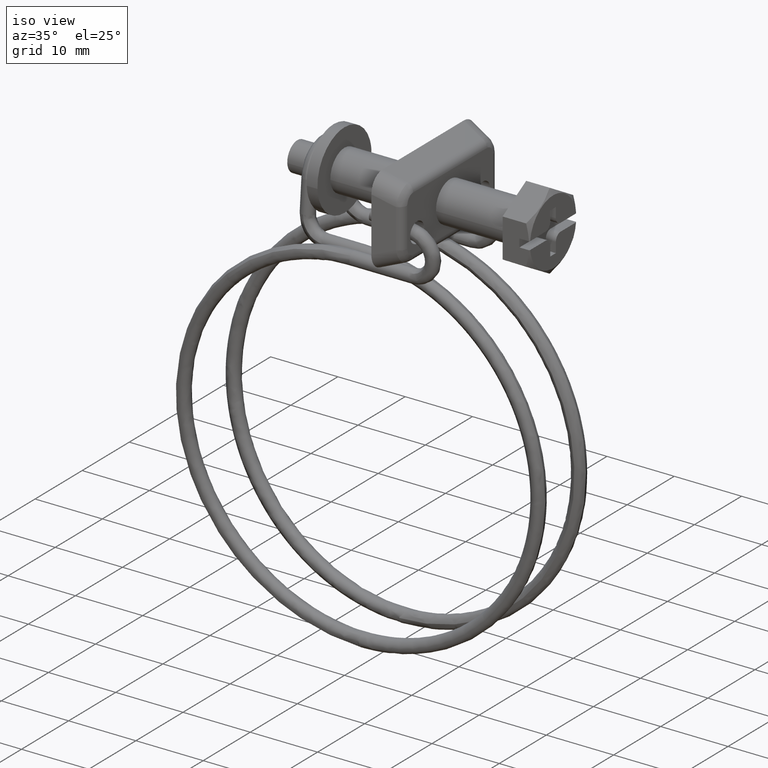
[diagram: clean part render]
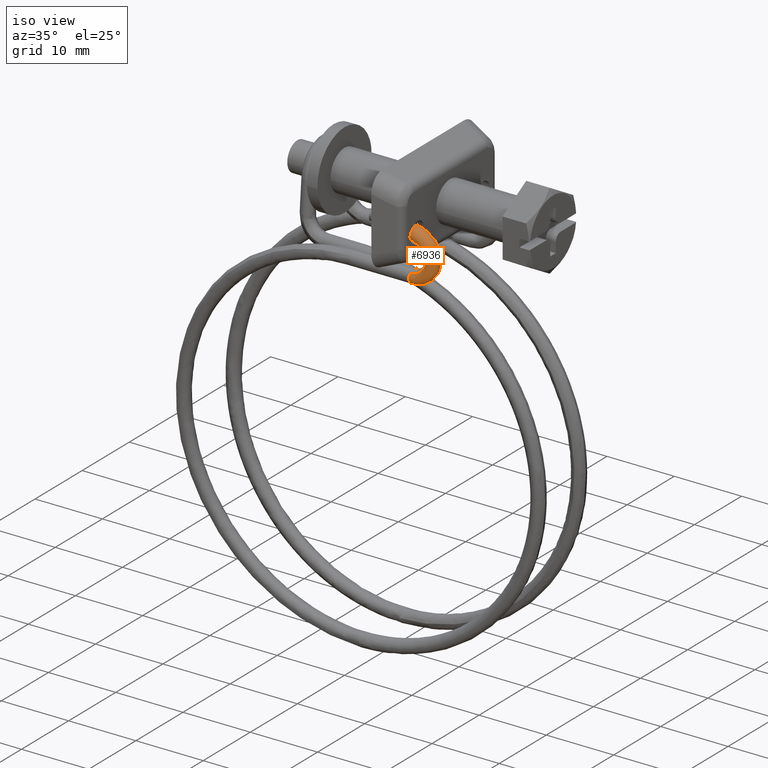
[diagram: same view with one face highlighted and labeled with its STEP entity id]
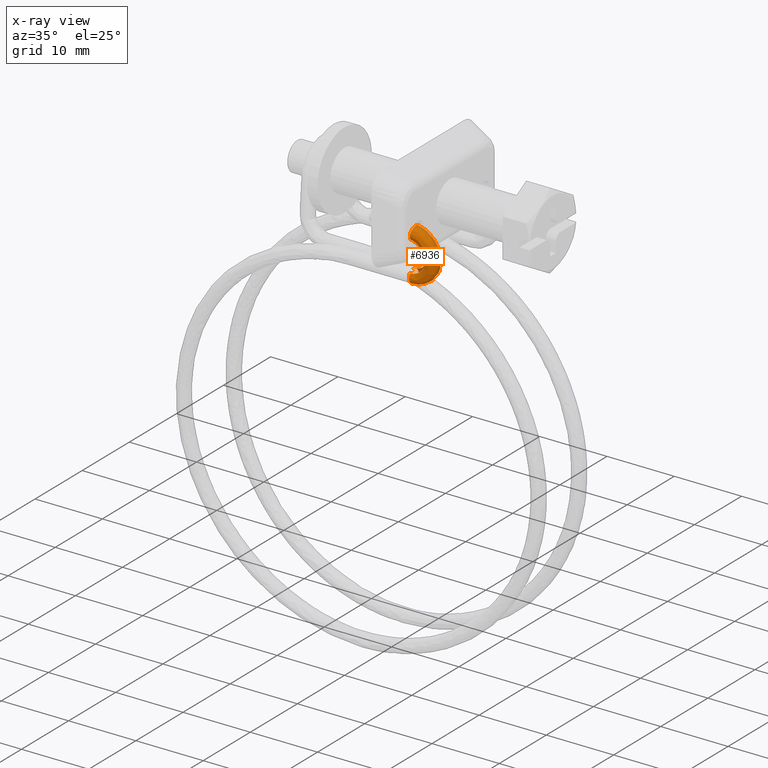
[diagram: x-ray of the same camera — body ghosted, the highlighted face saturated]
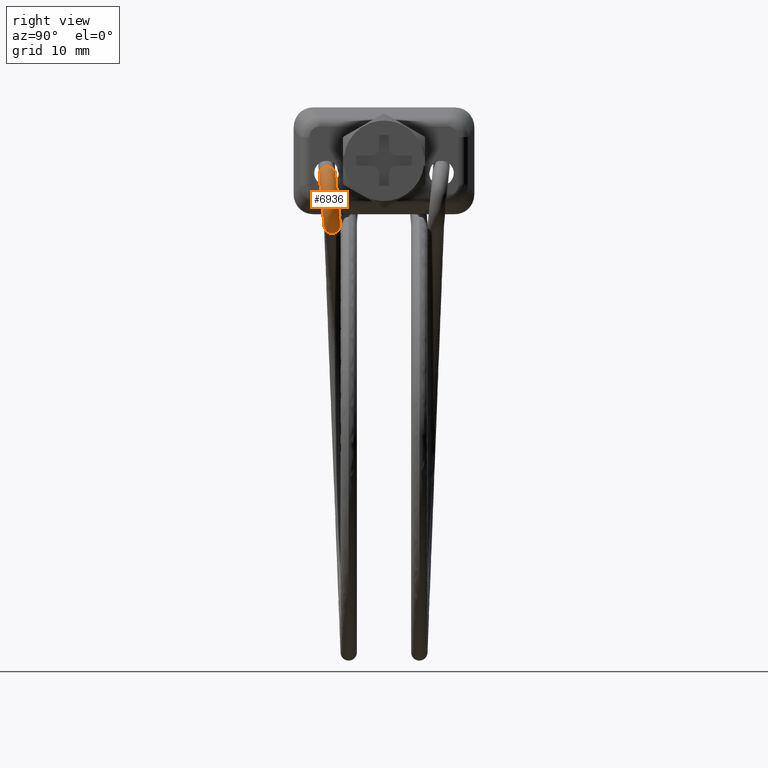
[diagram: same view with one face highlighted and labeled with its STEP entity id]
A machine part, iso view. The second image highlights one B-rep face of the part: STEP entity #6936.
The next image is the same camera in x-ray: the body ghosted, the highlighted face saturated — about 0% of this face is hidden behind the body in this view.
A second angle (right view) of the same face is appended — the face is thin or edge-on in the first view.
In plain terms, the highlighted face is a freeform B-spline surface patch.
Its self-contained STEP definition (entity closure, byte-faithful):
#4406=CARTESIAN_POINT('',(-11.933975147916540,-6.439904455316881,-2.573798456234132));
#4407=VERTEX_POINT('',#4406);
#4408=CARTESIAN_POINT('',(-11.946230552127689,-6.782140481819665,-2.675659128426863));
#4409=VERTEX_POINT('',#4408);
#4410=CARTESIAN_POINT('',(-11.933975147916540,-6.439904455316881,-2.573798456234132));
#4411=CARTESIAN_POINT('',(-11.941640489354709,-6.546727227960084,-2.627370374544086));
#4412=CARTESIAN_POINT('',(-11.945901383268961,-6.663031263229017,-2.662531109449830));
#4413=CARTESIAN_POINT('',(-11.946230552127689,-6.782140481819665,-2.675659128426863));
#4414=B_SPLINE_CURVE_WITH_KNOTS('',3,(#4410,#4411,#4412,#4413),.UNSPECIFIED.,.F.,.U.,(4,4),(0.942811783970662,1.0),.UNSPECIFIED.);
#4415=EDGE_CURVE('',#4407,#4409,#4414,.T.);
#4417=CARTESIAN_POINT('',(-11.893382545666411,-7.541170663317100,-2.447705715559456));
#4418=VERTEX_POINT('',#4417);
#4428=CARTESIAN_POINT('',(-11.597483001890110,-7.001318808772144,-0.718534705402715));
#4429=VERTEX_POINT('',#4428);
#4430=CARTESIAN_POINT('',(-11.893382545666411,-7.541170663317100,-2.447705715559456));
#4431=CARTESIAN_POINT('',(-11.861917005016350,-7.731936481633480,-2.287291670851238));
#4432=CARTESIAN_POINT('',(-11.818645573596131,-7.858028308515890,-2.053808439518039));
#4433=CARTESIAN_POINT('',(-11.729169737089240,-7.914261432260820,-1.551682059622800));
#4434=CARTESIAN_POINT('',(-11.683480470908020,-7.835665771442490,-1.285134372831780));
#4435=CARTESIAN_POINT('',(-11.617822923817460,-7.508280002791950,-0.881818959286532));
#4436=CARTESIAN_POINT('',(-11.598258951099600,-7.261505881756420,-0.747534781380378));
#4437=CARTESIAN_POINT('',(-11.597483001890110,-7.001318808772144,-0.718534705402715));
#4438=B_SPLINE_CURVE_WITH_KNOTS('',3,(#4430,#4431,#4432,#4433,#4434,#4435,#4436,#4437),.UNSPECIFIED.,.F.,.U.,(4,2,2,4),(0.130000056786331,0.250000000000000,0.375000000000000,0.500000000000000),.UNSPECIFIED.);
#4439=EDGE_CURVE('',#4418,#4429,#4438,.T.);
#4441=CARTESIAN_POINT('',(-11.758253521420540,-5.906470699628262,-1.526797445024362));
#4442=VERTEX_POINT('',#4441);
#4443=CARTESIAN_POINT('',(-11.597483001890110,-7.001318808772144,-0.718534705402715));
#4444=CARTESIAN_POINT('',(-11.596706976783020,-6.741126401253939,-0.689533694633394));
#4445=CARTESIAN_POINT('',(-11.614728502588489,-6.470723385588073,-0.766173584750687));
#4446=CARTESIAN_POINT('',(-11.675722251507221,-6.078068041957135,-1.074962816984510));
#4447=CARTESIAN_POINT('',(-11.716311726930069,-5.948065224936456,-1.292866146507063));
#4448=CARTESIAN_POINT('',(-11.758253521420540,-5.906470699628262,-1.526797445024362));
#4449=B_SPLINE_CURVE_WITH_KNOTS('',3,(#4443,#4444,#4445,#4446,#4447,#4448),.UNSPECIFIED.,.F.,.U.,(4,2,4),(0.500000000000000,0.625000000000000,0.740274298676123),.UNSPECIFIED.);
#4450=EDGE_CURVE('',#4429,#4442,#4449,.T.);
#4532=CARTESIAN_POINT('',(-11.758253521420540,-5.906470699628262,-1.526797445024362));
#4533=CARTESIAN_POINT('',(-11.761793244638371,-5.902959300459498,-1.546540237539844));
#4534=CARTESIAN_POINT('',(-11.765342619454010,-5.900077148308250,-1.566397259320315));
#4535=CARTESIAN_POINT('',(-11.814561183983420,-5.869118548817040,-1.842602769385076));
#4536=CARTESIAN_POINT('',(-11.860268840020931,-5.947672144605431,-2.109250773240899));
#4537=CARTESIAN_POINT('',(-11.910933265984211,-6.200107480523183,-2.420449720490219));
#4538=CARTESIAN_POINT('',(-11.924847612533449,-6.313340714270292,-2.510067605172098));
#4539=CARTESIAN_POINT('',(-11.933975147916540,-6.439904455316881,-2.573798456234132));
#4540=B_SPLINE_CURVE_WITH_KNOTS('',3,(#4532,#4533,#4534,#4535,#4536,#4537,#4538,#4539),.UNSPECIFIED.,.F.,.U.,(4,2,2,4),(0.740274298676123,0.750000000000000,0.875000000000000,0.942811783970662),.UNSPECIFIED.);
#4541=EDGE_CURVE('',#4442,#4407,#4540,.T.);
#4589=CARTESIAN_POINT('',(-12.310165880521421,-6.031830841851582,-6.889972466290047));
#4590=VERTEX_POINT('',#4589);
#4591=CARTESIAN_POINT('',(-12.310165851317970,-6.387194261816135,-6.852984779252412));
#4592=VERTEX_POINT('',#4591);
#4593=CARTESIAN_POINT('',(-12.310165880521421,-6.031830841851582,-6.889972466290047));
#4594=CARTESIAN_POINT('',(-12.310165870885530,-6.146864372987865,-6.856699431991589));
#4595=CARTESIAN_POINT('',(-12.310165860948130,-6.267732470398878,-6.843586106228098));
#4596=CARTESIAN_POINT('',(-12.310165851317970,-6.387194261816135,-6.852984779252412));
#4597=B_SPLINE_CURVE_WITH_KNOTS('',3,(#4593,#4594,#4595,#4596),.UNSPECIFIED.,.F.,.U.,(4,4),(0.942811792988676,1.0),.UNSPECIFIED.);
#4598=EDGE_CURVE('',#4590,#4592,#4597,.T.);
#4651=CARTESIAN_POINT('',(-12.310165851697249,-5.310171806353079,-7.833820456877360));
#4652=VERTEX_POINT('',#4651);
#4658=CARTESIAN_POINT('',(-12.310165851317979,-6.232809660708504,-8.847017222898192));
#4659=VERTEX_POINT('',#4658);
#4660=CARTESIAN_POINT('',(-12.310165851317979,-6.232809660708504,-8.847017222898192));
#4661=CARTESIAN_POINT('',(-12.310165851370760,-5.971786008105196,-8.826808250943644));
#4662=CARTESIAN_POINT('',(-12.310165851443641,-5.720686851276102,-8.699272167955133));
#4663=CARTESIAN_POINT('',(-12.310165851582861,-5.393365297247435,-8.317028969114357));
#4664=CARTESIAN_POINT('',(-12.310165851648501,-5.306840126779003,-8.075071320035530));
#4665=CARTESIAN_POINT('',(-12.310165851697249,-5.310171806353079,-7.833820456877360));
#4666=B_SPLINE_CURVE_WITH_KNOTS('',3,(#4660,#4661,#4662,#4663,#4664,#4665),.UNSPECIFIED.,.F.,.U.,(4,2,4),(0.500000000000000,0.625000000000000,0.740274306538936),.UNSPECIFIED.);
#4667=EDGE_CURVE('',#4659,#4652,#4666,.T.);
#4669=CARTESIAN_POINT('',(-12.310165851317970,-7.089615999440512,-7.223776100348874));
#4670=VERTEX_POINT('',#4669);
#4671=CARTESIAN_POINT('',(-12.310165851317970,-7.089615999440512,-7.223776100348874));
#4672=CARTESIAN_POINT('',(-12.310165851317979,-7.246677333731448,-7.419852812715453));
#4673=CARTESIAN_POINT('',(-12.310165851317979,-7.326418715713529,-7.676615918586326));
#4674=CARTESIAN_POINT('',(-12.310165851317979,-7.286809287194267,-8.188211537417576));
#4675=CARTESIAN_POINT('',(-12.310165851317979,-7.159273307659067,-8.439303214303308));
#4676=CARTESIAN_POINT('',(-12.310165851317979,-6.761558080889107,-8.779859048496993));
#4677=CARTESIAN_POINT('',(-12.310165851317979,-6.493827897489095,-8.867226119947786));
#4678=CARTESIAN_POINT('',(-12.310165851317979,-6.232809660708504,-8.847017222898192));
#4679=B_SPLINE_CURVE_WITH_KNOTS('',3,(#4671,#4672,#4673,#4674,#4675,#4676,#4677,#4678),.UNSPECIFIED.,.F.,.U.,(4,2,2,4),(0.130000059985611,0.249999999999999,0.375000000000000,0.500000000000000),.UNSPECIFIED.);
#4680=EDGE_CURVE('',#4670,#4659,#4679,.T.);
#4712=CARTESIAN_POINT('',(-12.310165851697249,-5.310171806353079,-7.833820456877360));
#4713=CARTESIAN_POINT('',(-12.310165852093689,-5.310452002704939,-7.813459753530331));
#4714=CARTESIAN_POINT('',(-12.310165852499461,-5.311371783416933,-7.793103931061405));
#4715=CARTESIAN_POINT('',(-12.310165858242630,-5.333133928854586,-7.511684696632903));
#4716=CARTESIAN_POINT('',(-12.310165864962441,-5.460647541741508,-7.260484987772699));
#4717=CARTESIAN_POINT('',(-12.310165874547410,-5.767352382414004,-6.997678169702633));
#4718=CARTESIAN_POINT('',(-12.310165877747030,-5.895490068226041,-6.929652594795718));
#4719=CARTESIAN_POINT('',(-12.310165880521421,-6.031830841851582,-6.889972466290047));
#4720=B_SPLINE_CURVE_WITH_KNOTS('',3,(#4712,#4713,#4714,#4715,#4716,#4717,#4718,#4719),.UNSPECIFIED.,.F.,.U.,(4,2,2,4),(0.740274306538936,0.750000000000001,0.875000000000000,0.942811792988676),.UNSPECIFIED.);
#4721=EDGE_CURVE('',#4652,#4590,#4720,.T.);
#6779=CARTESIAN_POINT('',(-12.345586670669739,-7.072533158611063,-7.202452560885216));
#6780=CARTESIAN_POINT('',(-12.348309668908760,-7.240753682503252,-7.401238477370231));
#6781=CARTESIAN_POINT('',(-12.352153074049889,-7.327122110103376,-7.667534244709528));
#6782=CARTESIAN_POINT('',(-12.359958998672059,-7.287053720038803,-8.188006054845168));
#6783=CARTESIAN_POINT('',(-12.367816971188880,-7.030661207502813,-8.691521145902993));
#6784=CARTESIAN_POINT('',(-12.372876167278051,-6.224372422824237,-8.955075276593622));
#6785=CARTESIAN_POINT('',(-12.369774785446189,-5.720401133517522,-8.699132702791175));
#6786=CARTESIAN_POINT('',(-12.364338999131380,-5.380118497060270,-8.301883248714185));
#6787=CARTESIAN_POINT('',(-12.356584487978710,-5.205363010143450,-7.764553823945334));
#6788=CARTESIAN_POINT('',(-12.344642961368081,-5.593655237256359,-6.999250461600053));
#6789=CARTESIAN_POINT('',(-12.341297313765530,-6.145211407242944,-6.826697786833786));
#6790=CARTESIAN_POINT('',(-12.341341150297540,-6.414444513197482,-6.855096630451586));
#6791=CARTESIAN_POINT('',(-11.743272113459581,-7.071681937726890,-7.211455865431228));
#6792=CARTESIAN_POINT('',(-11.699687160797570,-7.239837081041865,-7.410933308252310));
#6793=CARTESIAN_POINT('',(-11.638168710932980,-7.326113262394904,-7.678204758569284));
#6794=CARTESIAN_POINT('',(-11.513225239335689,-7.285857595266979,-8.200657387030601));
#6795=CARTESIAN_POINT('',(-11.387448677238011,-7.029276633551243,-8.706165694025492));
#6796=CARTESIAN_POINT('',(-11.306469991246869,-6.222866572921405,-8.971002553492454));
#6797=CARTESIAN_POINT('',(-11.356111440426069,-5.718969629937971,-8.714273622904090));
#6798=CARTESIAN_POINT('',(-11.443117918565360,-5.378817329441748,-8.315645612929387));
#6799=CARTESIAN_POINT('',(-11.567238453655349,-5.204247809917042,-7.776349221949722));
#6800=CARTESIAN_POINT('',(-11.758377347172020,-5.592826642914720,-7.008014446520810));
#6801=CARTESIAN_POINT('',(-11.811928572786920,-6.144463192653769,-6.834611600183510));
#6802=CARTESIAN_POINT('',(-11.811226914887669,-6.413695242304872,-6.863021616247139));
#6803=CARTESIAN_POINT('',(-11.143683628348640,-7.093342256207631,-6.982355815830704));
#6804=CARTESIAN_POINT('',(-11.054121418475560,-7.263165943385468,-7.164185157495326));
#6805=CARTESIAN_POINT('',(-10.927707869991259,-7.351797175077027,-7.406547363470819));
#6806=CARTESIAN_POINT('',(-10.670962970684871,-7.316324525958398,-7.878410260295311));
#6807=CARTESIAN_POINT('',(-10.412506153051650,-7.064558401932719,-8.332992280352761));
#6808=CARTESIAN_POINT('',(-10.246103971039441,-6.261248226601842,-8.565041814682946));
#6809=CARTESIAN_POINT('',(-10.348111620831560,-5.755450994159832,-8.328412146586709));
#6810=CARTESIAN_POINT('',(-10.526900240063300,-5.411968032140302,-7.965012369756959));
#6811=CARTESIAN_POINT('',(-10.781954106825401,-5.232647069653766,-7.475971742984383));
#6812=CARTESIAN_POINT('',(-11.174723200902211,-5.613908724831736,-6.785030374883514));
#6813=CARTESIAN_POINT('',(-11.284764982056380,-6.163495149942823,-6.633311589378429));
#6814=CARTESIAN_POINT('',(-11.283323153943890,-6.432754064410935,-6.661437457689352));
#6815=CARTESIAN_POINT('',(-10.265910174814231,-7.169438402596584,-6.177490828725850));
#6816=CARTESIAN_POINT('',(-10.109443353797930,-7.345062200347815,-6.297972702175255));
#6817=CARTESIAN_POINT('',(-9.888596569282013,-7.441880060754993,-6.453745361529207));
#6818=CARTESIAN_POINT('',(-9.440058527805574,-7.423034388653622,-6.749745586227912));
#6819=CARTESIAN_POINT('',(-8.988529733646832,-7.188006106657344,-7.027292320693451));
#6820=CARTESIAN_POINT('',(-8.697822073954294,-6.395472251570657,-7.145361275630596));
#6821=CARTESIAN_POINT('',(-8.876031306446722,-5.883068933268978,-6.978603834478079));
#6822=CARTESIAN_POINT('',(-9.188378298836449,-5.528007496777415,-6.737668980643700));
#6823=CARTESIAN_POINT('',(-9.633962075497061,-5.332169069708552,-6.423332718644856));
#6824=CARTESIAN_POINT('',(-10.320136876564881,-5.687994727061884,-6.001426578116307));
#6825=CARTESIAN_POINT('',(-10.512381883700421,-6.230454770418990,-5.925083162212695));
#6826=CARTESIAN_POINT('',(-10.509862983578120,-6.499807058671464,-5.952221420854346));
#6827=CARTESIAN_POINT('',(-9.987160760172753,-7.222877456411279,-5.612268732743130));
#6828=CARTESIAN_POINT('',(-9.809663721246185,-7.402548249733494,-5.689945744286307));
#6829=CARTESIAN_POINT('',(-9.559133608510766,-7.505078285750371,-5.785301018967394));
#6830=CARTESIAN_POINT('',(-9.050308966386595,-7.497833996328001,-5.958594021774501));
#6831=CARTESIAN_POINT('',(-8.538091593831993,-7.274484452469751,-6.112615349659951));
#6832=CARTESIAN_POINT('',(-8.208310823353637,-6.489469716156125,-6.151154975975461));
#6833=CARTESIAN_POINT('',(-8.410472603542605,-5.972457037416939,-6.033150500705216));
#6834=CARTESIAN_POINT('',(-8.764801182002612,-5.609316783405691,-5.877664880064230));
#6835=CARTESIAN_POINT('',(-9.270274485775360,-5.401953385364847,-5.685227637325550));
#6836=CARTESIAN_POINT('',(-10.048675903954670,-5.740031213735354,-5.451039361914566));
#6837=CARTESIAN_POINT('',(-10.266759963523659,-6.277518863026635,-5.427288699730408));
#6838=CARTESIAN_POINT('',(-10.263902505885371,-6.546936302328573,-5.453737859105071));
#6839=CARTESIAN_POINT('',(-9.884248125482120,-7.334122819900166,-4.435632302405996));
#6840=CARTESIAN_POINT('',(-9.698979352078990,-7.522194616929737,-4.424452334171012));
#6841=CARTESIAN_POINT('',(-9.437479740780164,-7.636582340369162,-4.394389465003330));
#6842=CARTESIAN_POINT('',(-8.906376135370039,-7.653420918643292,-4.312959227306441));
#6843=CARTESIAN_POINT('',(-8.371731248324290,-7.454314821731170,-4.210558876333224));
#6844=CARTESIAN_POINT('',(-8.027510977338292,-6.684908737212234,-4.084006603476242));
#6845=CARTESIAN_POINT('',(-8.238524441399834,-6.158327662994373,-4.067206550109564));
#6846=CARTESIAN_POINT('',(-8.608367349816200,-5.778416899912445,-4.089101732671350));
#6847=CARTESIAN_POINT('',(-9.135972878026182,-5.547129254316569,-4.149710013409546));
#6848=CARTESIAN_POINT('',(-9.948456719059447,-5.848365041607273,-4.305198092556958));
#6849=CARTESIAN_POINT('',(-10.176089621891361,-6.375530687757165,-4.390622721339963));
#6850=CARTESIAN_POINT('',(-10.173107050040739,-6.645083371638277,-4.415641405832576));
#6851=CARTESIAN_POINT('',(-10.060674967782139,-7.391358524065194,-3.830253232903187));
#6852=CARTESIAN_POINT('',(-9.888678099294895,-7.583752277271030,-3.773360158726261));
#6853=CARTESIAN_POINT('',(-9.645911261535424,-7.704240272435479,-3.678775032428445));
#6854=CARTESIAN_POINT('',(-9.152853768385244,-7.733468453476036,-3.466300609922942));
#6855=CARTESIAN_POINT('',(-8.656508676679122,-7.546834570466878,-3.231982300435997));
#6856=CARTESIAN_POINT('',(-8.336946952418950,-6.785458468004802,-3.020497324537089));
#6857=CARTESIAN_POINT('',(-8.532844266151828,-6.253954864601368,-3.055762606630562));
#6858=CARTESIAN_POINT('',(-8.876193125819365,-5.865416393715375,-3.168912606419747));
#6859=CARTESIAN_POINT('',(-9.366003129856230,-5.621820748616892,-3.359701958497317));
#6860=CARTESIAN_POINT('',(-10.120283917650490,-5.904102885541684,-3.715661812894082));
#6861=CARTESIAN_POINT('',(-10.331610120831311,-6.425958303680049,-3.857252447487684));
#6862=CARTESIAN_POINT('',(-10.328841208354291,-6.695580565097186,-3.881535213993952));
#6863=CARTESIAN_POINT('',(-10.785861835765949,-7.480765715295068,-2.884598016044405));
#6864=CARTESIAN_POINT('',(-10.668973800121890,-7.679953753097625,-2.755842146651938));
#6865=CARTESIAN_POINT('',(-10.503990919709020,-7.810031614642632,-2.559825501864752));
#6866=CARTESIAN_POINT('',(-10.168912017748051,-7.858736737098538,-2.141344481855090));
#6867=CARTESIAN_POINT('',(-9.831598883611324,-7.691709663450729,-1.699645968330601));
#6868=CARTESIAN_POINT('',(-9.614426660983705,-6.942957007683916,-1.354643452540676));
#6869=CARTESIAN_POINT('',(-9.747557295221133,-6.403714995360371,-1.471757483764666));
#6870=CARTESIAN_POINT('',(-9.980895111779578,-6.001613429464380,-1.728363634853512));
#6871=CARTESIAN_POINT('',(-10.313767039705009,-5.738669126479777,-2.123802736216678));
#6872=CARTESIAN_POINT('',(-10.826371718983840,-5.991155381749825,-2.794912082944291));
#6873=CARTESIAN_POINT('',(-10.969987733555080,-6.504662913210773,-3.024797881259846));
#6874=CARTESIAN_POINT('',(-10.968105997316909,-6.774394553243812,-3.047923755827079));
#6875=CARTESIAN_POINT('',(-11.336955781944461,-7.511953929516572,-2.554721886494539));
#6876=CARTESIAN_POINT('',(-11.262174529919390,-7.713535551322951,-2.400649203099901));
#6877=CARTESIAN_POINT('',(-11.156623788962930,-7.846991829551987,-2.168899220108098));
#6878=CARTESIAN_POINT('',(-10.942251218330700,-7.902558420078917,-1.677844807990747));
#6879=CARTESIAN_POINT('',(-10.726449397392001,-7.742438494115375,-1.163089751557956));
#6880=CARTESIAN_POINT('',(-10.587509866593090,-6.998132815906608,-0.771051784793308));
#6881=CARTESIAN_POINT('',(-10.672682400992530,-6.456164721406742,-0.916999445797609));
#6882=CARTESIAN_POINT('',(-10.821964197643590,-6.049285129107040,-1.224142534377833));
#6883=CARTESIAN_POINT('',(-11.034924680235230,-5.779524621385320,-1.691676279814026));
#6884=CARTESIAN_POINT('',(-11.362872659712369,-6.021514081716720,-2.473809682638955));
#6885=CARTESIAN_POINT('',(-11.454753712352810,-6.532080659325185,-2.734801797570036));
#6886=CARTESIAN_POINT('',(-11.453549830468241,-6.801850836257988,-2.757520069340144));
#6887=CARTESIAN_POINT('',(-11.931688285605240,-7.521004022299251,-2.458999533738129));
#6888=CARTESIAN_POINT('',(-11.902616063800830,-7.723281369695838,-2.297568197284337));
#6889=CARTESIAN_POINT('',(-11.861581758582529,-7.857719672555153,-2.055431391261950));
#6890=CARTESIAN_POINT('',(-11.778241407262350,-7.915280820199450,-1.543280652956916));
#6891=CARTESIAN_POINT('',(-11.694345352872430,-7.757168825865311,-1.007287808724655));
#6892=CARTESIAN_POINT('',(-11.640330573626750,-7.014155966018172,-0.601575769697828));
#6893=CARTESIAN_POINT('',(-11.673442643343950,-6.471395351545993,-0.755905873040802));
#6894=CARTESIAN_POINT('',(-11.731478103673030,-6.063126739737122,-1.077740548344731));
#6895=CARTESIAN_POINT('',(-11.814269547481359,-5.791384737081685,-1.566232462037023));
#6896=CARTESIAN_POINT('',(-11.941763848078891,-6.030323025080111,-2.380637954694974));
#6897=CARTESIAN_POINT('',(-11.977483808712780,-6.540034838508386,-2.650670865414194));
#6898=CARTESIAN_POINT('',(-11.977015786412270,-6.809816211965380,-2.673270712141069));
#6899=B_SPLINE_SURFACE_WITH_KNOTS('',3,3,((#6779,#6791,#6803,#6815,#6827,#6839,#6851,#6863,#6875,#6887),(#6780,#6792,#6804,#6816,#6828,#6840,#6852,#6864,#6876,#6888),(#6781,#6793,#6805,#6817,#6829,#6841,#6853,#6865,#6877,#6889),(#6782,#6794,#6806,#6818,#6830,#6842,#6854,#6866,#6878,#6890),(#6783,#6795,#6807,#6819,#6831,#6843,#6855,#6867,#6879,#6891),(#6784,#6796,#6808,#6820,#6832,#6844,#6856,#6868,#6880,#6892),(#6785,#6797,#6809,#6821,#6833,#6845,#6857,#6869,#6881,#6893),(#6786,#6798,#6810,#6822,#6834,#6846,#6858,#6870,#6882,#6894),(#6787,#6799,#6811,#6823,#6835,#6847,#6859,#6871,#6883,#6895),(#6788,#6800,#6812,#6824,#6836,#6848,#6860,#6872,#6884,#6896),(#6789,#6801,#6813,#6825,#6837,#6849,#6861,#6873,#6885,#6897),(#6790,#6802,#6814,#6826,#6838,#6850,#6862,#6874,#6886,#6898)),.UNSPECIFIED.,.F.,.F.,.U.,(4,2,1,1,2,1,1,4),(4,2,2,2,4),(0.0,0.781791245076741,1.567665746084477,2.353540247092212,3.139414748099948,3.925289249107684,4.711163750115420,5.524386823662944),(0.0,3.116993196146059,6.172868879977759,9.228744563808908,12.345737759957890),.UNSPECIFIED.);
#6900=ORIENTED_EDGE('',*,*,#4439,.F.);
#6901=CARTESIAN_POINT('',(-12.310165851317970,-7.089615999440512,-7.223776100348874));
#6902=CARTESIAN_POINT('',(-11.714927460882491,-7.089619838228408,-7.223734002469374));
#6903=CARTESIAN_POINT('',(-11.125268442318321,-7.111357145531929,-6.993819645619928));
#6904=CARTESIAN_POINT('',(-10.249046265332970,-7.187318797926195,-6.190377194509759));
#6905=CARTESIAN_POINT('',(-9.968030225179891,-7.241194034820836,-5.620541612750837));
#6906=CARTESIAN_POINT('',(-9.864279957144776,-7.353344853952091,-4.434328225123125));
#6907=CARTESIAN_POINT('',(-10.042137238021111,-7.411046376301107,-3.824022220888372));
#6908=CARTESIAN_POINT('',(-10.766024851110140,-7.500293371832995,-2.880061385604503));
#6909=CARTESIAN_POINT('',(-11.307177068083410,-7.531393944271438,-2.551112238915407));
#6910=CARTESIAN_POINT('',(-11.893382545666411,-7.541170663317100,-2.447705715559456));
#6911=B_SPLINE_CURVE_WITH_KNOTS('',3,(#6901,#6902,#6903,#6904,#6905,#6906,#6907,#6908,#6909,#6910),.UNSPECIFIED.,.F.,.U.,(4,2,2,2,4),(0.963132240127944,0.968676432605346,0.974220625082749,0.979764817560151,0.985309010037554),.UNSPECIFIED.);
#6912=EDGE_CURVE('',#4670,#4418,#6911,.T.);
#6913=ORIENTED_EDGE('',*,*,#6912,.F.);
#6914=ORIENTED_EDGE('',*,*,#4680,.T.);
#6915=ORIENTED_EDGE('',*,*,#4667,.T.);
#6916=ORIENTED_EDGE('',*,*,#4721,.T.);
#6917=ORIENTED_EDGE('',*,*,#4598,.T.);
#6918=CARTESIAN_POINT('',(-12.310165851317970,-6.387194261816135,-6.852984779252412));
#6919=CARTESIAN_POINT('',(-11.790461738579870,-6.387197457072735,-6.852950971297621));
#6920=CARTESIAN_POINT('',(-11.275434947464250,-6.406171757562420,-6.652260792992840));
#6921=CARTESIAN_POINT('',(-10.509463795263400,-6.472575503034320,-5.949911826866400));
#6922=CARTESIAN_POINT('',(-10.263449663928800,-6.519715071721456,-5.451319057810965));
#6923=CARTESIAN_POINT('',(-10.172634380331120,-6.617883574216591,-4.412995906849311));
#6924=CARTESIAN_POINT('',(-10.328402398644339,-6.668391794201615,-3.878773088017027));
#6925=CARTESIAN_POINT('',(-10.961477056405281,-6.746442599521645,-3.053233774958880));
#6926=CARTESIAN_POINT('',(-11.434379484839001,-6.773604234269145,-2.765946568168353));
#6927=CARTESIAN_POINT('',(-11.946230552127689,-6.782140481819665,-2.675659128426863));
#6928=B_SPLINE_CURVE_WITH_KNOTS('',3,(#6918,#6919,#6920,#6921,#6922,#6923,#6924,#6925,#6926,#6927),.UNSPECIFIED.,.F.,.U.,(4,2,2,2,4),(0.963132240127944,0.968676432605346,0.974220625082749,0.979764817560151,0.985309010037554),.UNSPECIFIED.);
#6929=EDGE_CURVE('',#4592,#4409,#6928,.T.);
#6930=ORIENTED_EDGE('',*,*,#6929,.T.);
#6931=ORIENTED_EDGE('',*,*,#4415,.F.);
#6932=ORIENTED_EDGE('',*,*,#4541,.F.);
#6933=ORIENTED_EDGE('',*,*,#4450,.F.);
#6934=EDGE_LOOP('',(#6900,#6913,#6914,#6915,#6916,#6917,#6930,#6931,#6932,#6933));
#6935=FACE_OUTER_BOUND('',#6934,.T.);
#6936=ADVANCED_FACE('',(#6935),#6899,.T.);